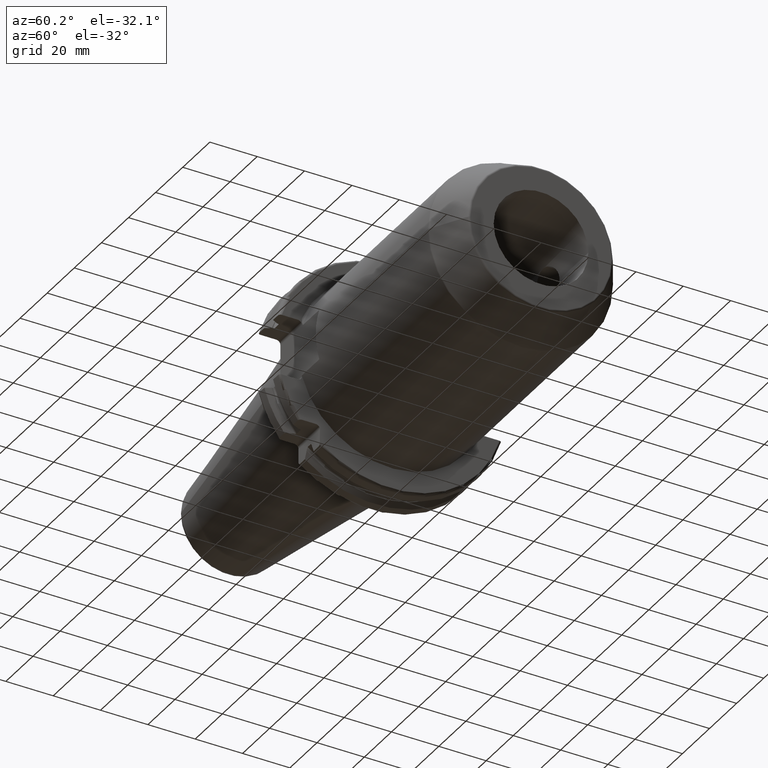
[diagram: clean part render]
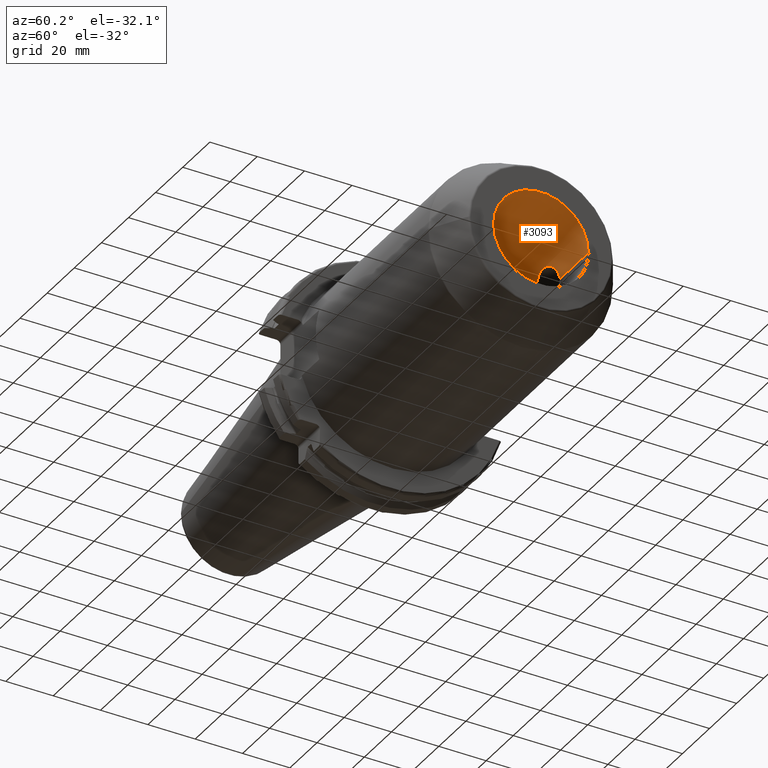
[diagram: same view with one face highlighted and labeled with its STEP entity id]
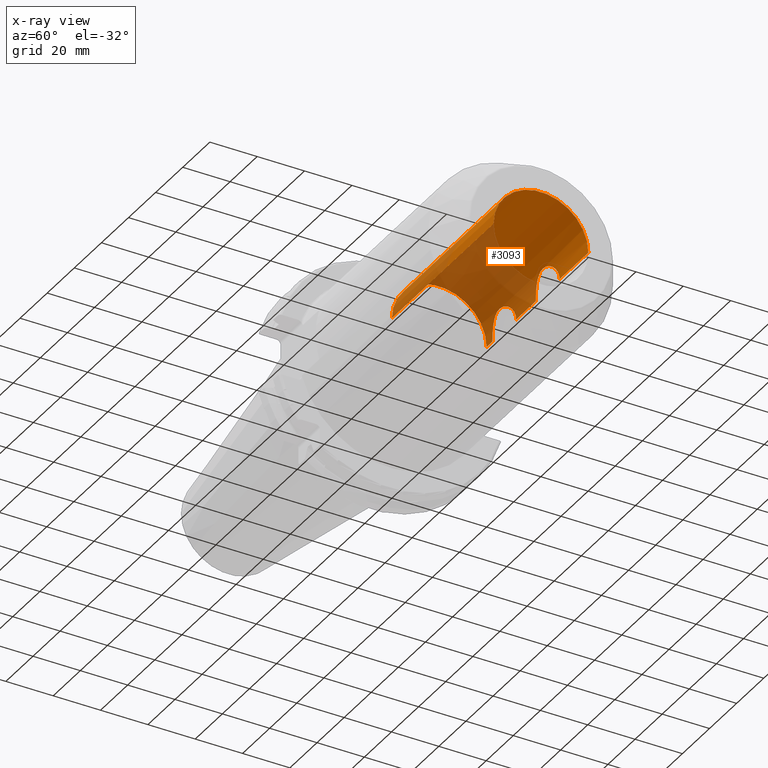
[diagram: x-ray of the same camera — body ghosted, the highlighted face saturated]
A machine part, auxiliary view. The second image highlights one B-rep face of the part: STEP entity #3093.
The next image is the same camera in x-ray: the body ghosted, the highlighted face saturated — about 48% of this face is hidden behind the body in this view.
In plain terms, the highlighted cylindrical surface (partial cylindrical patch) has radius 20 mm, axis along (1, 0, 0).
Its self-contained STEP definition (entity closure, byte-faithful):
#1218=CARTESIAN_POINT('',(1.3E2,0.E0,0.E0));
#1219=DIRECTION('',(1.E0,0.E0,0.E0));
#1220=DIRECTION('',(0.E0,1.E0,0.E0));
#1221=AXIS2_PLACEMENT_3D('',#1218,#1219,#1220);
#1238=CARTESIAN_POINT('',(5.925E1,2.E1,0.E0));
#1239=CARTESIAN_POINT('',(5.925E1,2.E1,4.026775252588E-1));
#1240=CARTESIAN_POINT('',(5.930481774534E1,1.997591516891E1,1.206580366377E0));
#1241=CARTESIAN_POINT('',(5.956060355407E1,1.986532035224E1,2.419084007897E0));
#1242=CARTESIAN_POINT('',(5.998639577989E1,1.968712809570E1,3.587580175029E0));
#1243=CARTESIAN_POINT('',(6.058823499813E1,1.944841540111E1,4.708620458146E0));
#1244=CARTESIAN_POINT('',(6.135245180209E1,1.916811808877E1,5.738767377459E0));
#1245=CARTESIAN_POINT('',(6.227796807805E1,1.886496075969E1,6.662024024363E0));
#1246=CARTESIAN_POINT('',(6.331194357308E1,1.857545690130E1,7.425021014427E0));
#1247=CARTESIAN_POINT('',(6.443850381184E1,1.832201597051E1,8.025350820958E0));
#1248=CARTESIAN_POINT('',(6.560440127229E1,1.813058605234E1,8.445405575385E0));
#1249=CARTESIAN_POINT('',(6.679970675200E1,1.801107434034E1,8.695446378149E0));
#1250=CARTESIAN_POINT('',(6.800068186306E1,1.797100744316E1,8.777292283891E0));
#1251=CARTESIAN_POINT('',(6.920065060469E1,1.801110520566E1,8.695384395656E0));
#1252=CARTESIAN_POINT('',(7.039662491377E1,1.813071679921E1,8.445124863634E0));
#1253=CARTESIAN_POINT('',(7.156195945131E1,1.832211125615E1,8.025136441484E0));
#1254=CARTESIAN_POINT('',(7.268893920854E1,1.857567459047E1,7.424486366198E0));
#1255=CARTESIAN_POINT('',(7.372261198833E1,1.886514512994E1,6.661487375147E0));
#1256=CARTESIAN_POINT('',(7.464789385021E1,1.916823581430E1,5.738397757433E0));
#1257=CARTESIAN_POINT('',(7.541239675261E1,1.944865644708E1,4.707632916148E0));
#1258=CARTESIAN_POINT('',(7.601384116558E1,1.968722738023E1,3.587006724502E0));
#1259=CARTESIAN_POINT('',(7.643953026183E1,1.986537739611E1,2.418543412011E0));
#1260=CARTESIAN_POINT('',(7.669512345903E1,1.997588994438E1,1.206827914129E0));
#1261=CARTESIAN_POINT('',(7.675E1,2.E1,4.028045927071E-1));
#1262=CARTESIAN_POINT('',(7.675E1,2.E1,0.E0));
#1264=CARTESIAN_POINT('',(9.125E1,2.E1,0.E0));
#1265=CARTESIAN_POINT('',(9.125E1,2.E1,4.026775252588E-1));
#1266=CARTESIAN_POINT('',(9.130481774534E1,1.997591516891E1,1.206580366377E0));
#1267=CARTESIAN_POINT('',(9.156060355407E1,1.986532035224E1,2.419084007897E0));
#1268=CARTESIAN_POINT('',(9.198639577989E1,1.968712809570E1,3.587580175029E0));
#1269=CARTESIAN_POINT('',(9.258823499813E1,1.944841540111E1,4.708620458146E0));
#1270=CARTESIAN_POINT('',(9.335245180209E1,1.916811808877E1,5.738767377459E0));
#1271=CARTESIAN_POINT('',(9.427796807805E1,1.886496075969E1,6.662024024363E0));
#1272=CARTESIAN_POINT('',(9.531194357308E1,1.857545690130E1,7.425021014427E0));
#1273=CARTESIAN_POINT('',(9.643850381184E1,1.832201597051E1,8.025350820958E0));
#1274=CARTESIAN_POINT('',(9.760440127229E1,1.813058605234E1,8.445405575385E0));
#1275=CARTESIAN_POINT('',(9.879970675200E1,1.801107434034E1,8.695446378149E0));
#1276=CARTESIAN_POINT('',(1.000006818631E2,1.797100744316E1,8.777292283891E0));
#1277=CARTESIAN_POINT('',(1.012006506047E2,1.801110520566E1,8.695384395656E0));
#1278=CARTESIAN_POINT('',(1.023966249138E2,1.813071679921E1,8.445124863634E0));
#1279=CARTESIAN_POINT('',(1.035619594513E2,1.832211125615E1,8.025136441484E0));
#1280=CARTESIAN_POINT('',(1.046889392085E2,1.857567459047E1,7.424486366198E0));
#1281=CARTESIAN_POINT('',(1.057226119883E2,1.886514512994E1,6.661487375147E0));
#1282=CARTESIAN_POINT('',(1.066478938502E2,1.916823581430E1,5.738397757433E0));
#1283=CARTESIAN_POINT('',(1.074123967526E2,1.944865644708E1,4.707632916148E0));
#1284=CARTESIAN_POINT('',(1.080138411656E2,1.968722738023E1,3.587006724502E0));
#1285=CARTESIAN_POINT('',(1.084395302618E2,1.986537739611E1,2.418543412011E0));
#1286=CARTESIAN_POINT('',(1.086951234590E2,1.997588994438E1,1.206827914129E0));
#1287=CARTESIAN_POINT('',(1.0875E2,2.E1,4.028045927071E-1));
#1288=CARTESIAN_POINT('',(1.0875E2,2.E1,0.E0));
#1324=DIRECTION('',(-1.E0,0.E0,0.E0));
#1325=VECTOR('',#1324,1.45E1);
#1326=CARTESIAN_POINT('',(9.125E1,2.E1,0.E0));
#1327=LINE('',#1326,#1325);
#1354=DIRECTION('',(-1.E0,0.E0,0.E0));
#1355=VECTOR('',#1354,2.125E1);
#1356=CARTESIAN_POINT('',(1.3E2,2.E1,0.E0));
#1357=LINE('',#1356,#1355);
#1358=DIRECTION('',(-1.E0,0.E0,0.E0));
#1359=VECTOR('',#1358,7.51E1);
#1360=CARTESIAN_POINT('',(1.3E2,-2.E1,0.E0));
#1361=LINE('',#1360,#1359);
#1362=DIRECTION('',(-1.E0,0.E0,0.E0));
#1363=VECTOR('',#1362,4.35E0);
#1364=CARTESIAN_POINT('',(5.925E1,2.E1,0.E0));
#1365=LINE('',#1364,#1363);
#1379=CARTESIAN_POINT('',(5.49E1,0.E0,0.E0));
#1380=DIRECTION('',(1.E0,0.E0,0.E0));
#1381=DIRECTION('',(0.E0,1.E0,0.E0));
#1382=AXIS2_PLACEMENT_3D('',#1379,#1380,#1381);
#1795=CARTESIAN_POINT('',(5.49E1,2.E1,0.E0));
#1796=CARTESIAN_POINT('',(5.49E1,-2.E1,0.E0));
#1797=VERTEX_POINT('',#1795);
#1798=VERTEX_POINT('',#1796);
#1799=CARTESIAN_POINT('',(1.3E2,-2.E1,0.E0));
#1800=VERTEX_POINT('',#1799);
#1801=CARTESIAN_POINT('',(1.0875E2,2.E1,0.E0));
#1803=VERTEX_POINT('',#1801);
#1805=CARTESIAN_POINT('',(9.125E1,2.E1,0.E0));
#1807=VERTEX_POINT('',#1805);
#1809=CARTESIAN_POINT('',(1.3E2,2.E1,0.E0));
#1810=VERTEX_POINT('',#1809);
#1829=VERTEX_POINT('',#1238);
#1830=VERTEX_POINT('',#1262);
#3071=CARTESIAN_POINT('',(5.1145E1,0.E0,0.E0));
#3072=DIRECTION('',(1.E0,0.E0,0.E0));
#3073=DIRECTION('',(0.E0,-1.E0,0.E0));
#3074=AXIS2_PLACEMENT_3D('',#3071,#3072,#3073);
#3075=CYLINDRICAL_SURFACE('',#3074,2.E1);
#3077=ORIENTED_EDGE('',*,*,#3076,.F.);
#3079=ORIENTED_EDGE('',*,*,#3078,.T.);
#3081=ORIENTED_EDGE('',*,*,#3080,.T.);
#3083=ORIENTED_EDGE('',*,*,#3082,.F.);
#3084=ORIENTED_EDGE('',*,*,#3064,.F.);
#3086=ORIENTED_EDGE('',*,*,#3085,.T.);
#3088=ORIENTED_EDGE('',*,*,#3087,.F.);
#3090=ORIENTED_EDGE('',*,*,#3089,.T.);
#3091=EDGE_LOOP('',(#3077,#3079,#3081,#3083,#3084,#3086,#3088,#3090));
#3092=FACE_OUTER_BOUND('',#3091,.F.);
#3093=ADVANCED_FACE('',(#3092),#3075,.F.);
#1222=CIRCLE('',#1221,2.E1);
#1263=B_SPLINE_CURVE_WITH_KNOTS('',3,(#1238,#1239,#1240,#1241,#1242,#1243,#1244,
#1245,#1246,#1247,#1248,#1249,#1250,#1251,#1252,#1253,#1254,#1255,#1256,#1257,
#1258,#1259,#1260,#1261,#1262),.UNSPECIFIED.,.F.,.F.,(4,1,1,1,1,1,1,1,1,1,1,1,1,
1,1,1,1,1,1,1,1,1,4),(0.E0,4.545454545455E-2,9.090909090909E-2,
1.363636363636E-1,1.818181818182E-1,2.272727272727E-1,2.727272727273E-1,
3.181818181818E-1,3.636363636364E-1,4.090909090909E-1,4.545454545455E-1,5.E-1,
5.454545454545E-1,5.909090909091E-1,6.363636363636E-1,6.818181818182E-1,
7.272727272727E-1,7.727272727273E-1,8.181818181818E-1,8.636363636364E-1,
9.090909090909E-1,9.545454545455E-1,1.E0),.UNSPECIFIED.);
#1289=B_SPLINE_CURVE_WITH_KNOTS('',3,(#1264,#1265,#1266,#1267,#1268,#1269,#1270,
#1271,#1272,#1273,#1274,#1275,#1276,#1277,#1278,#1279,#1280,#1281,#1282,#1283,
#1284,#1285,#1286,#1287,#1288),.UNSPECIFIED.,.F.,.F.,(4,1,1,1,1,1,1,1,1,1,1,1,1,
1,1,1,1,1,1,1,1,1,4),(0.E0,4.545454545455E-2,9.090909090909E-2,
1.363636363636E-1,1.818181818182E-1,2.272727272727E-1,2.727272727273E-1,
3.181818181818E-1,3.636363636364E-1,4.090909090909E-1,4.545454545455E-1,5.E-1,
5.454545454545E-1,5.909090909091E-1,6.363636363636E-1,6.818181818182E-1,
7.272727272727E-1,7.727272727273E-1,8.181818181818E-1,8.636363636364E-1,
9.090909090909E-1,9.545454545455E-1,1.E0),.UNSPECIFIED.);
#1383=CIRCLE('',#1382,2.E1);
#3064=EDGE_CURVE('',#1810,#1800,#1222,.T.);
#3076=EDGE_CURVE('',#1829,#1830,#1263,.T.);
#3078=EDGE_CURVE('',#1829,#1797,#1365,.T.);
#3080=EDGE_CURVE('',#1797,#1798,#1383,.T.);
#3082=EDGE_CURVE('',#1800,#1798,#1361,.T.);
#3085=EDGE_CURVE('',#1810,#1803,#1357,.T.);
#3087=EDGE_CURVE('',#1807,#1803,#1289,.T.);
#3089=EDGE_CURVE('',#1807,#1830,#1327,.T.);